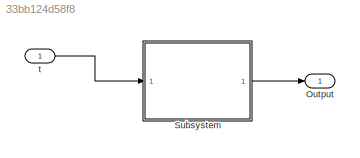
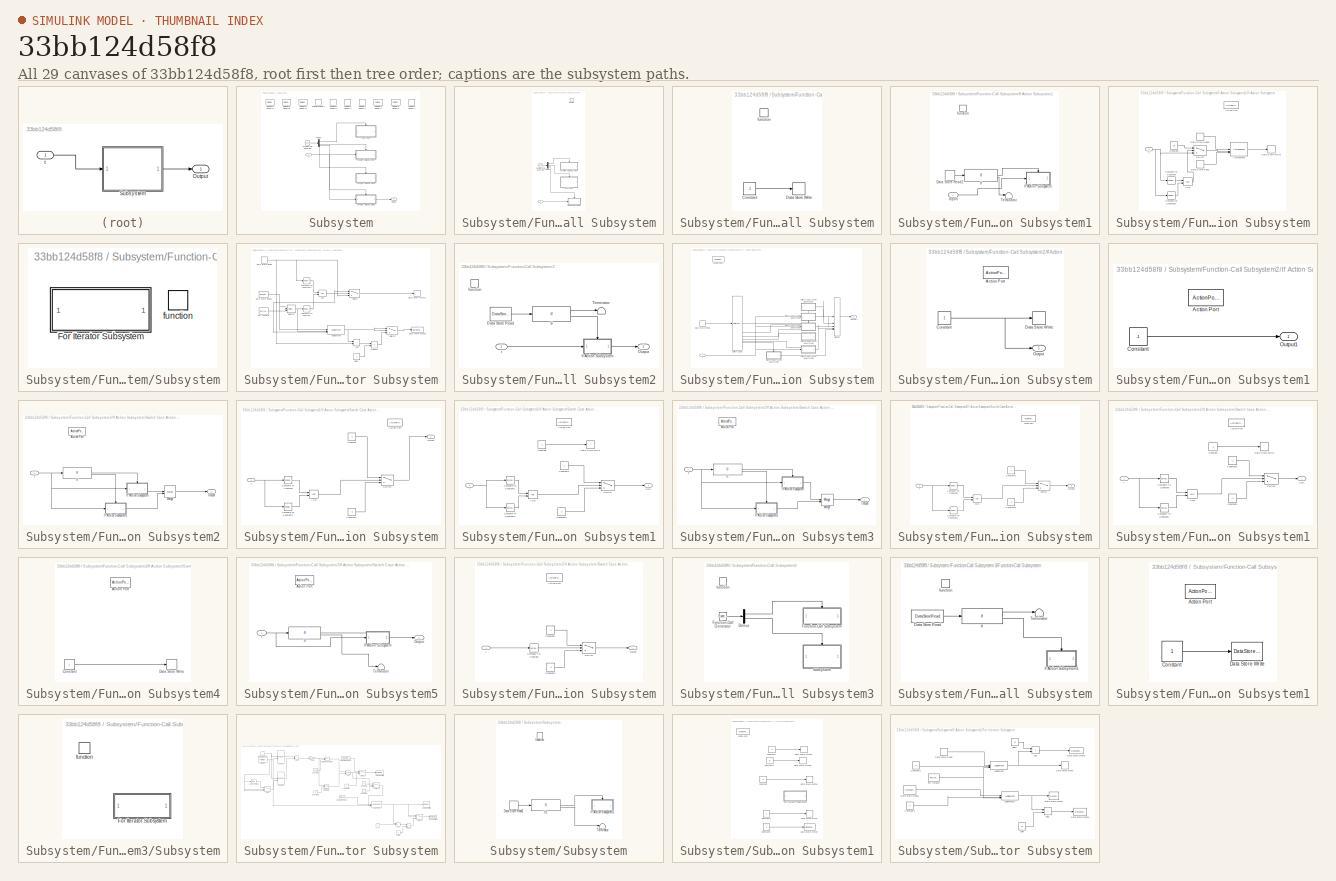
[diagram: thumbnail index - all 29 canvases of the model, root first then tree order]
MODEL slx_33bb124d58f8
KIND model
CONFIG AbsTol = auto
CONFIG EnableMultiTasking = off
CONFIG FixedStep = 1
CONFIG MaxStep = auto
CONFIG MinStep = auto
CONFIG RelTol = 1e-3
CONFIG SampleTimeConstraint = Unconstrained
CONFIG SolverName = FixedStepAuto
CONFIG StartTime = 0.0
CONFIG StopTime = 10.0
BLOCK [Outport] Output
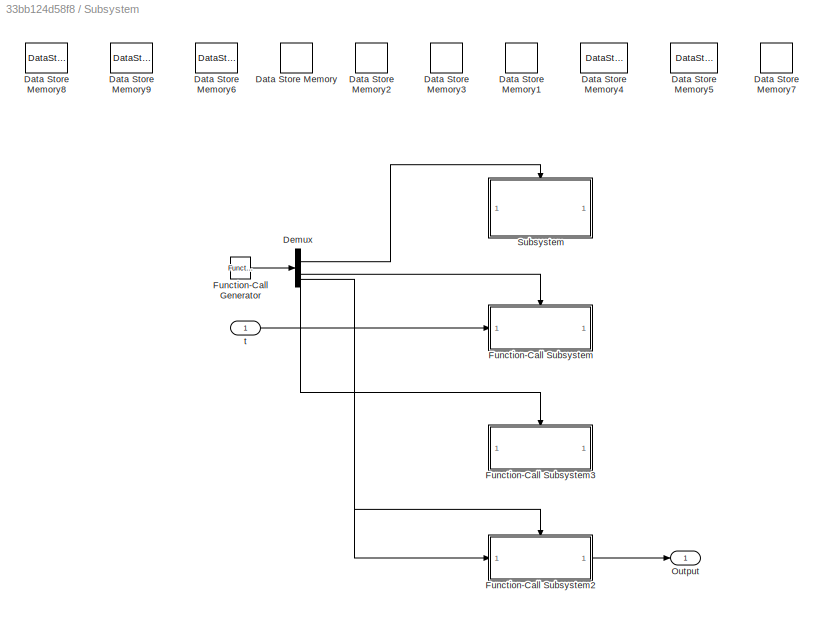
BLOCK [SubSystem] Subsystem
BLOCK [DataStoreMemory] Subsystem/Data Store Memory
  DataStoreName = Data
  Dimensions = length
  OutDataTypeStr = single
  ShowAdditionalParam = off
  WriteAfterWriteMsg = warning
BLOCK [DataStoreMemory] Subsystem/Data Store Memory1
  DataStoreName = ID
  OutDataTypeStr = int32
  ShowAdditionalParam = off
  WriteAfterWriteMsg = warning
BLOCK [DataStoreMemory] Subsystem/Data Store Memory2
  DataStoreName = Index
  OutDataTypeStr = int32
  ShowAdditionalParam = off
  WriteAfterWriteMsg = warning
BLOCK [DataStoreMemory] Subsystem/Data Store Memory3
  DataStoreName = Init
  OutDataTypeStr = int32
  ShowAdditionalParam = off
  WriteAfterWriteMsg = warning
BLOCK [DataStoreMemory] Subsystem/Data Store Memory4
  DataStoreName = Terminate
  OutDataTypeStr = int32
  ShowAdditionalParam = off
  WriteAfterWriteMsg = warning
BLOCK [DataStoreMemory] Subsystem/Data Store Memory5
  DataStoreName = Error
  OutDataTypeStr = int32
  ShowAdditionalParam = off
  WriteAfterWriteMsg = warning
BLOCK [DataStoreMemory] Subsystem/Data Store Memory6
  DataStoreName = Satisfied
  Dimensions = length
  OutDataTypeStr = int32
  ShowAdditionalParam = off
  WriteAfterWriteMsg = warning
BLOCK [DataStoreMemory] Subsystem/Data Store Memory7
  DataStoreName = State
  ShowAdditionalParam = off
  WriteAfterWriteMsg = warning
BLOCK [DataStoreMemory] Subsystem/Data Store Memory8
  DataStoreName = Data_o
  Dimensions = length
  OutDataTypeStr = single
  ShowAdditionalParam = off
  WriteAfterWriteMsg = warning
BLOCK [DataStoreMemory] Subsystem/Data Store Memory9
  DataStoreName = Sat_o
  Dimensions = length
  OutDataTypeStr = int32
  ShowAdditionalParam = off
  WriteAfterWriteMsg = warning
BLOCK [Demux] Subsystem/Demux
BLOCK [Reference] Subsystem/Function-Call Generator  REF=simulink/Ports &
Subsystems/Function-Call
Generator
  SourceBlock = simulink/Ports &\nSubsystems/Function-Call\nGenerator
  SourceType = Function-Call Generator
BLOCK [SubSystem] Subsystem/Function-Call Subsystem
  TreatAsAtomicUnit = on
BLOCK [Demux] Subsystem/Function-Call Subsystem/Demux
  Outputs = 3
BLOCK [Reference] Subsystem/Function-Call Subsystem/Function-Call Generator  REF=simulink/Ports &
Subsystems/Function-Call
Generator
  SourceBlock = simulink/Ports &\nSubsystems/Function-Call\nGenerator
  SourceType = Function-Call Generator
BLOCK [SubSystem] Subsystem/Function-Call Subsystem/Function-Call Subsystem
  TreatAsAtomicUnit = on
BLOCK [Constant] Subsystem/Function-Call Subsystem/Function-Call Subsystem/Constant
  OutDataTypeStr = int32
  Value = -1
BLOCK [DataStoreWrite] Subsystem/Function-Call Subsystem/Function-Call Subsystem/Data Store Write
  DataStoreName = Index
  IndexOptions = Index vector (dialog)
  Indices = 1
  OutputSizes = 1
BLOCK [TriggerPort] Subsystem/Function-Call Subsystem/Function-Call Subsystem/function
  StatesWhenEnabling = held
  TriggerType = function-call
  VariantControl = (inherit)
BLOCK [SubSystem] Subsystem/Function-Call Subsystem/If Action Subsystem1
  TreatAsAtomicUnit = on
BLOCK [DataStoreRead] Subsystem/Function-Call Subsystem/If Action Subsystem1/Data Store Read2
  DataStoreName = Index
  IndexOptions = Index vector (dialog)
  Indices = 1
  OutputSizes = 1
BLOCK [If] Subsystem/Function-Call Subsystem/If Action Subsystem1/If
  IfExpression = u1 ~= -1
BLOCK [SubSystem] Subsystem/Function-Call Subsystem/If Action Subsystem1/If Action Subsystem
  TreatAsAtomicUnit = on
BLOCK [Logic] Subsystem/Function-Call Subsystem/If Action Subsystem1/If Action Subsystem/AND
  AllPortsSameDT = off
  IconShape = distinctive
  OutDataTypeStr = boolean
BLOCK [ActionPort] Subsystem/Function-Call Subsystem/If Action Subsystem1/If Action Subsystem/Action Port
  ActionPortLabel = if(u1 ~= -1)
BLOCK [Assignment] Subsystem/Function-Call Subsystem/If Action Subsystem1/If Action Subsystem/Assignment
  DiagnosticForDimensions = Warning
  IndexMode = Zero-based
  IndexOptions = Index vector (port)
  Indices = 1
  OutputSizes = 1
BLOCK [Reference] Subsystem/Function-Call Subsystem/If Action Subsystem1/If Action Subsystem/Compare To Constant  REF=simulink/Logic and Bit
Operations/Compare
To Constant
  SourceBlock = simulink/Logic and Bit\nOperations/Compare\nTo Constant
  SourceType = Compare To Constant
BLOCK [Reference] Subsystem/Function-Call Subsystem/If Action Subsystem1/If Action Subsystem/Compare To Constant1  REF=simulink/Logic and Bit
Operations/Compare
To Constant
  SourceBlock = simulink/Logic and Bit\nOperations/Compare\nTo Constant
  SourceType = Compare To Constant
BLOCK [Constant] Subsystem/Function-Call Subsystem/If Action Subsystem1/If Action Subsystem/Constant
  OutDataTypeStr = single
  Value = 1.5
BLOCK [DataStoreRead] Subsystem/Function-Call Subsystem/If Action Subsystem1/If Action Subsystem/Data Store Read
  DataStoreName = Index
  IndexOptions = Index vector (dialog)
  Indices = 1
  OutputSizes = 1
BLOCK [DataStoreRead] Subsystem/Function-Call Subsystem/If Action Subsystem1/If Action Subsystem/Data Store Read1
  DataStoreName = Data
  IndexOptions = Index vector (dialog)
  Indices = 1
  OutputSizes = 1
BLOCK [DataStoreWrite] Subsystem/Function-Call Subsystem/If Action Subsystem1/If Action Subsystem/Data Store Write
  DataStoreName = Data
  IndexOptions = Index vector (dialog)
  Indices = 1
  OutputSizes = 1
BLOCK [Switch] Subsystem/Function-Call Subsystem/If Action Subsystem1/If Action Subsystem/Switch
  Criteria = u2 ~= 0
  InputSameDT = off
  SaturateOnIntegerOverflow = off
BLOCK [Inport] Subsystem/Function-Call Subsystem/If Action Subsystem1/If Action Subsystem/t
BLOCK [Inport] Subsystem/Function-Call Subsystem/If Action Subsystem1/Inport
BLOCK [Terminator] Subsystem/Function-Call Subsystem/If Action Subsystem1/Terminator
BLOCK [TriggerPort] Subsystem/Function-Call Subsystem/If Action Subsystem1/function
  StatesWhenEnabling = held
  TriggerType = function-call
  VariantControl = (inherit)
BLOCK [SubSystem] Subsystem/Function-Call Subsystem/Subsystem
BLOCK [SubSystem] Subsystem/Function-Call Subsystem/Subsystem/For Iterator Subsystem
  TreatAsAtomicUnit = on
BLOCK [Logic] Subsystem/Function-Call Subsystem/Subsystem/For Iterator Subsystem/AND
  AllPortsSameDT = off
  IconShape = distinctive
  OutDataTypeStr = boolean
BLOCK [Sum] Subsystem/Function-Call Subsystem/Subsystem/For Iterator Subsystem/Add
  IconShape = rectangular
  OutDataTypeStr = int32
BLOCK [Assignment] Subsystem/Function-Call Subsystem/Subsystem/For Iterator Subsystem/Assignment
  DiagnosticForDimensions = Warning
  IndexMode = Zero-based
  IndexOptions = Index vector (port)
  Indices = 1
  OutputSizes = 1
BLOCK [Reference] Subsystem/Function-Call Subsystem/Subsystem/For Iterator Subsystem/Compare To Constant  REF=simulink/Logic and Bit
Operations/Compare
To Constant
  SourceBlock = simulink/Logic and Bit\nOperations/Compare\nTo Constant
  SourceType = Compare To Constant
BLOCK [Reference] Subsystem/Function-Call Subsystem/Subsystem/For Iterator Subsystem/Compare To Constant1  REF=simulink/Logic and Bit
Operations/Compare
To Constant
  SourceBlock = simulink/Logic and Bit\nOperations/Compare\nTo Constant
  SourceType = Compare To Constant
BLOCK [DataStoreRead] Subsystem/Function-Call Subsystem/Subsystem/For Iterator Subsystem/Data Store Read
  DataStoreName = Index
  IndexOptions = Index vector (dialog)
  Indices = 1
  OutputSizes = 1
BLOCK [DataStoreRead] Subsystem/Function-Call Subsystem/Subsystem/For Iterator Subsystem/Data Store Read1
  DataStoreName = Satisfied
  IndexOptions = Index vector (dialog)
  Indices = 1
  OutputSizes = 1
BLOCK [DataStoreWrite] Subsystem/Function-Call Subsystem/Subsystem/For Iterator Subsystem/Data Store Write1
  DataStoreName = Index
  IndexOptions = Index vector (dialog)
  Indices = 1
  OutputSizes = 1
BLOCK [DataStoreWrite] Subsystem/Function-Call Subsystem/Subsystem/For Iterator Subsystem/Data Store Write2
  DataStoreName = Sat_o
  IndexOptions = Index vector (dialog)
  Indices = 1
  OutputSizes = 1
BLOCK [ForIterator] Subsystem/Function-Call Subsystem/Subsystem/For Iterator Subsystem/For Iterator
  IndexMode = Zero-based
  IterationLimit = length
BLOCK [Product] Subsystem/Function-Call Subsystem/Subsystem/For Iterator Subsystem/Product
  OutDataTypeStr = int32
BLOCK [Selector] Subsystem/Function-Call Subsystem/Subsystem/For Iterator Subsystem/Selector
  IndexMode = Zero-based
  IndexOptions = Index vector (port)
  Indices = [1 3]
  InputPortWidth = length
  OutputSizes = 1
BLOCK [Switch] Subsystem/Function-Call Subsystem/Subsystem/For Iterator Subsystem/Switch
  Criteria = u2 ~= 0
  InputSameDT = off
  SaturateOnIntegerOverflow = off
BLOCK [Switch] Subsystem/Function-Call Subsystem/Subsystem/For Iterator Subsystem/Switch1
  Criteria = u2 > Threshold
  InputSameDT = off
  SaturateOnIntegerOverflow = off
  Threshold = 144
BLOCK [Constant] Subsystem/Function-Call Subsystem/Subsystem/For Iterator Subsystem/delta
  Value = 2
BLOCK [TriggerPort] Subsystem/Function-Call Subsystem/Subsystem/function
  StatesWhenEnabling = held
  TriggerType = function-call
  VariantControl = (inherit)
BLOCK [TriggerPort] Subsystem/Function-Call Subsystem/function
  StatesWhenEnabling = held
  TriggerType = function-call
  VariantControl = (inherit)
BLOCK [Inport] Subsystem/Function-Call Subsystem/t
BLOCK [SubSystem] Subsystem/Function-Call Subsystem2
  TreatAsAtomicUnit = on
BLOCK [DataStoreRead] Subsystem/Function-Call Subsystem2/Data Store Read
  DataStoreName = Terminate
  IndexOptions = Index vector (dialog)
  Indices = 1
  OutputSizes = 1
BLOCK [If] Subsystem/Function-Call Subsystem2/If
  IfExpression = u1 == 0
BLOCK [SubSystem] Subsystem/Function-Call Subsystem2/If Action Subsystem
  TreatAsAtomicUnit = on
BLOCK [ActionPort] Subsystem/Function-Call Subsystem2/If Action Subsystem/Action Port
  ActionPortLabel = else
BLOCK [DataStoreRead] Subsystem/Function-Call Subsystem2/If Action Subsystem/Data Store Read
  DataStoreName = State
  IndexOptions = Index vector (dialog)
  Indices = 1
  OutputSizes = 1
BLOCK [Merge] Subsystem/Function-Call Subsystem2/If Action Subsystem/Merge
  Inputs = 5
BLOCK [Outport] Subsystem/Function-Call Subsystem2/If Action Subsystem/Output1
  OutDataTypeStr = int32
BLOCK [SwitchCase] Subsystem/Function-Call Subsystem2/If Action Subsystem/Switch Case
  CaseConditions = {0,1,2,3,4}
BLOCK [SubSystem] Subsystem/Function-Call Subsystem2/If Action Subsystem/Switch Case Action Subsystem
  TreatAsAtomicUnit = on
BLOCK [ActionPort] Subsystem/Function-Call Subsystem2/If Action Subsystem/Switch Case Action Subsystem/Action Port
  ActionPortLabel = case [ 0 ]:
BLOCK [Constant] Subsystem/Function-Call Subsystem2/If Action Subsystem/Switch Case Action Subsystem/Constant
  OutDataTypeStr = int32
BLOCK [DataStoreWrite] Subsystem/Function-Call Subsystem2/If Action Subsystem/Switch Case Action Subsystem/Data Store Write
  DataStoreName = State
  IndexOptions = Index vector (dialog)
  Indices = 1
  OutputSizes = 1
BLOCK [Outport] Subsystem/Function-Call Subsystem2/If Action Subsystem/Switch Case Action Subsystem/Output
  OutDataTypeStr = int32
BLOCK [SubSystem] Subsystem/Function-Call Subsystem2/If Action Subsystem/Switch Case Action Subsystem1
  TreatAsAtomicUnit = on
BLOCK [ActionPort] Subsystem/Function-Call Subsystem2/If Action Subsystem/Switch Case Action Subsystem1/Action Port
  ActionPortLabel = default:
BLOCK [Constant] Subsystem/Function-Call Subsystem2/If Action Subsystem/Switch Case Action Subsystem1/Constant
  OutDataTypeStr = int32
  Value = -1
BLOCK [Outport] Subsystem/Function-Call Subsystem2/If Action Subsystem/Switch Case Action Subsystem1/Output1
  OutDataTypeStr = int32
BLOCK [SubSystem] Subsystem/Function-Call Subsystem2/If Action Subsystem/Switch Case Action Subsystem2
  TreatAsAtomicUnit = on
BLOCK [ActionPort] Subsystem/Function-Call Subsystem2/If Action Subsystem/Switch Case Action Subsystem2/Action Port
  ActionPortLabel = case [ 1 ]:
BLOCK [If] Subsystem/Function-Call Subsystem2/If Action Subsystem/Switch Case Action Subsystem2/If
  IfExpression = u1 >= 2
BLOCK [SubSystem] Subsystem/Function-Call Subsystem2/If Action Subsystem/Switch Case Action Subsystem2/If Action Subsystem
  TreatAsAtomicUnit = on
BLOCK [Logic] Subsystem/Function-Call Subsystem2/If Action Subsystem/Switch Case Action Subsystem2/If Action Subsystem/AND
  AllPortsSameDT = off
  IconShape = distinctive
  OutDataTypeStr = boolean
BLOCK [ActionPort] Subsystem/Function-Call Subsystem2/If Action Subsystem/Switch Case Action Subsystem2/If Action Subsystem/Action Port
  ActionPortLabel = if(u1 >= 2)
BLOCK [Reference] Subsystem/Function-Call Subsystem2/If Action Subsystem/Switch Case Action Subsystem2/If Action Subsystem/Compare To Constant  REF=simulink/Logic and Bit
Operations/Compare
To Constant
  SourceBlock = simulink/Logic and Bit\nOperations/Compare\nTo Constant
  SourceType = Compare To Constant
BLOCK [Reference] Subsystem/Function-Call Subsystem2/If Action Subsystem/Switch Case Action Subsystem2/If Action Subsystem/Compare To Constant1  REF=simulink/Logic and Bit
Operations/Compare
To Constant
  SourceBlock = simulink/Logic and Bit\nOperations/Compare\nTo Constant
  SourceType = Compare To Constant
BLOCK [Constant] Subsystem/Function-Call Subsystem2/If Action Subsystem/Switch Case Action Subsystem2/If Action Subsystem/Constant
  OutDataTypeStr = int32
  Value = -1
BLOCK [Constant] Subsystem/Function-Call Subsystem2/If Action Subsystem/Switch Case Action Subsystem2/If Action Subsystem/Constant1
  OutDataTypeStr = int32
  Value = -3
BLOCK [Outport] Subsystem/Function-Call Subsystem2/If Action Subsystem/Switch Case Action Subsystem2/If Action Subsystem/Output
BLOCK [Switch] Subsystem/Function-Call Subsystem2/If Action Subsystem/Switch Case Action Subsystem2/If Action Subsystem/Switch
  Criteria = u2 > Threshold
  InputSameDT = off
  SaturateOnIntegerOverflow = off
BLOCK [Inport] Subsystem/Function-Call Subsystem2/If Action Subsystem/Switch Case Action Subsystem2/If Action Subsystem/t
BLOCK [SubSystem] Subsystem/Function-Call Subsystem2/If Action Subsystem/Switch Case Action Subsystem2/If Action Subsystem1
  TreatAsAtomicUnit = on
BLOCK [Logic] Subsystem/Function-Call Subsystem2/If Action Subsystem/Switch Case Action Subsystem2/If Action Subsystem1/AND
  AllPortsSameDT = off
  IconShape = distinctive
  OutDataTypeStr = boolean
BLOCK [ActionPort] Subsystem/Function-Call Subsystem2/If Action Subsystem/Switch Case Action Subsystem2/If Action Subsystem1/Action Port
  ActionPortLabel = else
BLOCK [Reference] Subsystem/Function-Call Subsystem2/If Action Subsystem/Switch Case Action Subsystem2/If Action Subsystem1/Compare To Constant1  REF=simulink/Logic and Bit
Operations/Compare
To Constant
  SourceBlock = simulink/Logic and Bit\nOperations/Compare\nTo Constant
  SourceType = Compare To Constant
BLOCK [Reference] Subsystem/Function-Call Subsystem2/If Action Subsystem/Switch Case Action Subsystem2/If Action Subsystem1/Compare To Constant2  REF=simulink/Logic and Bit
Operations/Compare
To Constant
  SourceBlock = simulink/Logic and Bit\nOperations/Compare\nTo Constant
  SourceType = Compare To Constant
BLOCK [Constant] Subsystem/Function-Call Subsystem2/If Action Subsystem/Switch Case Action Subsystem2/If Action Subsystem1/Constant
  OutDataTypeStr = int32
  Value = 2
BLOCK [Constant] Subsystem/Function-Call Subsystem2/If Action Subsystem/Switch Case Action Subsystem2/If Action Subsystem1/Constant1
  OutDataTypeStr = int32
BLOCK [Constant] Subsystem/Function-Call Subsystem2/If Action Subsystem/Switch Case Action Subsystem2/If Action Subsystem1/Constant2
  OutDataTypeStr = int32
  Value = 3
BLOCK [DataStoreWrite] Subsystem/Function-Call Subsystem2/If Action Subsystem/Switch Case Action Subsystem2/If Action Subsystem1/Data Store Write
  DataStoreName = State
  IndexOptions = Index vector (dialog)
  Indices = 1
  OutputSizes = 1
BLOCK [Outport] Subsystem/Function-Call Subsystem2/If Action Subsystem/Switch Case Action Subsystem2/If Action Subsystem1/Out1
BLOCK [Switch] Subsystem/Function-Call Subsystem2/If Action Subsystem/Switch Case Action Subsystem2/If Action Subsystem1/Switch
  Criteria = u2 > Threshold
  InputSameDT = off
  SaturateOnIntegerOverflow = off
BLOCK [Inport] Subsystem/Function-Call Subsystem2/If Action Subsystem/Switch Case Action Subsystem2/If Action Subsystem1/t
BLOCK [Merge] Subsystem/Function-Call Subsystem2/If Action Subsystem/Switch Case Action Subsystem2/Merge
BLOCK [Outport] Subsystem/Function-Call Subsystem2/If Action Subsystem/Switch Case Action Subsystem2/Output
  OutDataTypeStr = int32
BLOCK [Inport] Subsystem/Function-Call Subsystem2/If Action Subsystem/Switch Case Action Subsystem2/t
BLOCK [SubSystem] Subsystem/Function-Call Subsystem2/If Action Subsystem/Switch Case Action Subsystem3
  TreatAsAtomicUnit = on
BLOCK [ActionPort] Subsystem/Function-Call Subsystem2/If Action Subsystem/Switch Case Action Subsystem3/Action Port
  ActionPortLabel = case [ 2 ]:
BLOCK [If] Subsystem/Function-Call Subsystem2/If Action Subsystem/Switch Case Action Subsystem3/If
  IfExpression = u1 > 9
BLOCK [SubSystem] Subsystem/Function-Call Subsystem2/If Action Subsystem/Switch Case Action Subsystem3/If Action Subsystem
  TreatAsAtomicUnit = on
BLOCK [Logic] Subsystem/Function-Call Subsystem2/If Action Subsystem/Switch Case Action Subsystem3/If Action Subsystem/AND
  AllPortsSameDT = off
  IconShape = distinctive
  OutDataTypeStr = boolean
BLOCK [ActionPort] Subsystem/Function-Call Subsystem2/If Action Subsystem/Switch Case Action Subsystem3/If Action Subsystem/Action Port
  ActionPortLabel = if(u1 > 9)
BLOCK [Reference] Subsystem/Function-Call Subsystem2/If Action Subsystem/Switch Case Action Subsystem3/If Action Subsystem/Compare To Constant  REF=simulink/Logic and Bit
Operations/Compare
To Constant
  SourceBlock = simulink/Logic and Bit\nOperations/Compare\nTo Constant
  SourceType = Compare To Constant
BLOCK [Reference] Subsystem/Function-Call Subsystem2/If Action Subsystem/Switch Case Action Subsystem3/If Action Subsystem/Compare To Constant1  REF=simulink/Logic and Bit
Operations/Compare
To Constant
  SourceBlock = simulink/Logic and Bit\nOperations/Compare\nTo Constant
  SourceType = Compare To Constant
BLOCK [Constant] Subsystem/Function-Call Subsystem2/If Action Subsystem/Switch Case Action Subsystem3/If Action Subsystem/Constant1
  OutDataTypeStr = int32
  Value = -1
BLOCK [Constant] Subsystem/Function-Call Subsystem2/If Action Subsystem/Switch Case Action Subsystem3/If Action Subsystem/Constant2
  OutDataTypeStr = int32
  Value = -3
BLOCK [Outport] Subsystem/Function-Call Subsystem2/If Action Subsystem/Switch Case Action Subsystem3/If Action Subsystem/Output
BLOCK [Switch] Subsystem/Function-Call Subsystem2/If Action Subsystem/Switch Case Action Subsystem3/If Action Subsystem/Switch
  Criteria = u2 > Threshold
  InputSameDT = off
  SaturateOnIntegerOverflow = off
BLOCK [Inport] Subsystem/Function-Call Subsystem2/If Action Subsystem/Switch Case Action Subsystem3/If Action Subsystem/t
BLOCK [SubSystem] Subsystem/Function-Call Subsystem2/If Action Subsystem/Switch Case Action Subsystem3/If Action Subsystem1
  TreatAsAtomicUnit = on
BLOCK [Logic] Subsystem/Function-Call Subsystem2/If Action Subsystem/Switch Case Action Subsystem3/If Action Subsystem1/AND
  AllPortsSameDT = off
  IconShape = distinctive
  OutDataTypeStr = boolean
BLOCK [ActionPort] Subsystem/Function-Call Subsystem2/If Action Subsystem/Switch Case Action Subsystem3/If Action Subsystem1/Action Port
  ActionPortLabel = else
BLOCK [Reference] Subsystem/Function-Call Subsystem2/If Action Subsystem/Switch Case Action Subsystem3/If Action Subsystem1/Compare To Constant  REF=simulink/Logic and Bit
Operations/Compare
To Constant
  SourceBlock = simulink/Logic and Bit\nOperations/Compare\nTo Constant
  SourceType = Compare To Constant
BLOCK [Reference] Subsystem/Function-Call Subsystem2/If Action Subsystem/Switch Case Action Subsystem3/If Action Subsystem1/Compare To Constant1  REF=simulink/Logic and Bit
Operations/Compare
To Constant
  SourceBlock = simulink/Logic and Bit\nOperations/Compare\nTo Constant
  SourceType = Compare To Constant
BLOCK [Constant] Subsystem/Function-Call Subsystem2/If Action Subsystem/Switch Case Action Subsystem3/If Action Subsystem1/Constant
  OutDataTypeStr = int32
  Value = 3
BLOCK [Constant] Subsystem/Function-Call Subsystem2/If Action Subsystem/Switch Case Action Subsystem3/If Action Subsystem1/Constant1
  OutDataTypeStr = int32
  Value = -1
BLOCK [Constant] Subsystem/Function-Call Subsystem2/If Action Subsystem/Switch Case Action Subsystem3/If Action Subsystem1/Constant2
  OutDataTypeStr = int32
  Value = -3
BLOCK [DataStoreWrite] Subsystem/Function-Call Subsystem2/If Action Subsystem/Switch Case Action Subsystem3/If Action Subsystem1/Data Store Write
  DataStoreName = State
  IndexOptions = Index vector (dialog)
  Indices = 1
  OutputSizes = 1
BLOCK [Outport] Subsystem/Function-Call Subsystem2/If Action Subsystem/Switch Case Action Subsystem3/If Action Subsystem1/Out1
BLOCK [Switch] Subsystem/Function-Call Subsystem2/If Action Subsystem/Switch Case Action Subsystem3/If Action Subsystem1/Switch
  Criteria = u2 > Threshold
  InputSameDT = off
  SaturateOnIntegerOverflow = off
BLOCK [Inport] Subsystem/Function-Call Subsystem2/If Action Subsystem/Switch Case Action Subsystem3/If Action Subsystem1/t
BLOCK [Merge] Subsystem/Function-Call Subsystem2/If Action Subsystem/Switch Case Action Subsystem3/Merge
BLOCK [Outport] Subsystem/Function-Call Subsystem2/If Action Subsystem/Switch Case Action Subsystem3/Output
  OutDataTypeStr = int32
BLOCK [Inport] Subsystem/Function-Call Subsystem2/If Action Subsystem/Switch Case Action Subsystem3/t
BLOCK [SubSystem] Subsystem/Function-Call Subsystem2/If Action Subsystem/Switch Case Action Subsystem4
  TreatAsAtomicUnit = on
BLOCK [ActionPort] Subsystem/Function-Call Subsystem2/If Action Subsystem/Switch Case Action Subsystem4/Action Port
  ActionPortLabel = case [ 3 ]:
BLOCK [Constant] Subsystem/Function-Call Subsystem2/If Action Subsystem/Switch Case Action Subsystem4/Constant
  OutDataTypeStr = int32
  Value = 4
BLOCK [DataStoreWrite] Subsystem/Function-Call Subsystem2/If Action Subsystem/Switch Case Action Subsystem4/Data Store Write
  DataStoreName = State
  IndexOptions = Index vector (dialog)
  Indices = 1
  OutputSizes = 1
BLOCK [SubSystem] Subsystem/Function-Call Subsystem2/If Action Subsystem/Switch Case Action Subsystem5
  TreatAsAtomicUnit = on
BLOCK [ActionPort] Subsystem/Function-Call Subsystem2/If Action Subsystem/Switch Case Action Subsystem5/Action Port
  ActionPortLabel = case [ 4 ]:
BLOCK [If] Subsystem/Function-Call Subsystem2/If Action Subsystem/Switch Case Action Subsystem5/If
  IfExpression = u1 ~= -1
BLOCK [SubSystem] Subsystem/Function-Call Subsystem2/If Action Subsystem/Switch Case Action Subsystem5/If Action Subsystem
  TreatAsAtomicUnit = on
BLOCK [ActionPort] Subsystem/Function-Call Subsystem2/If Action Subsystem/Switch Case Action Subsystem5/If Action Subsystem/Action Port
  ActionPortLabel = if(u1 ~= -1)
BLOCK [Reference] Subsystem/Function-Call Subsystem2/If Action Subsystem/Switch Case Action Subsystem5/If Action Subsystem/Compare To Constant  REF=simulink/Logic and Bit
Operations/Compare
To Constant
  SourceBlock = simulink/Logic and Bit\nOperations/Compare\nTo Constant
  SourceType = Compare To Constant
BLOCK [Constant] Subsystem/Function-Call Subsystem2/If Action Subsystem/Switch Case Action Subsystem5/If Action Subsystem/Constant1
  OutDataTypeStr = int32
  Value = -1
BLOCK [Constant] Subsystem/Function-Call Subsystem2/If Action Subsystem/Switch Case Action Subsystem5/If Action Subsystem/Constant2
  OutDataTypeStr = int32
  Value = -3
BLOCK [Outport] Subsystem/Function-Call Subsystem2/If Action Subsystem/Switch Case Action Subsystem5/If Action Subsystem/Output
BLOCK [Switch] Subsystem/Function-Call Subsystem2/If Action Subsystem/Switch Case Action Subsystem5/If Action Subsystem/Switch
  Criteria = u2 > Threshold
  InputSameDT = off
  SaturateOnIntegerOverflow = off
BLOCK [Inport] Subsystem/Function-Call Subsystem2/If Action Subsystem/Switch Case Action Subsystem5/If Action Subsystem/t
BLOCK [Outport] Subsystem/Function-Call Subsystem2/If Action Subsystem/Switch Case Action Subsystem5/Output
  OutDataTypeStr = int32
BLOCK [Terminator] Subsystem/Function-Call Subsystem2/If Action Subsystem/Switch Case Action Subsystem5/Terminator
BLOCK [Inport] Subsystem/Function-Call Subsystem2/If Action Subsystem/Switch Case Action Subsystem5/t
BLOCK [Inport] Subsystem/Function-Call Subsystem2/If Action Subsystem/t
BLOCK [Outport] Subsystem/Function-Call Subsystem2/Output
BLOCK [Terminator] Subsystem/Function-Call Subsystem2/Terminator
BLOCK [TriggerPort] Subsystem/Function-Call Subsystem2/function
  StatesWhenEnabling = held
  TriggerType = function-call
  VariantControl = (inherit)
BLOCK [Inport] Subsystem/Function-Call Subsystem2/t
BLOCK [SubSystem] Subsystem/Function-Call Subsystem3
  TreatAsAtomicUnit = on
BLOCK [Demux] Subsystem/Function-Call Subsystem3/Demux
  Outputs = 2
BLOCK [Reference] Subsystem/Function-Call Subsystem3/Function-Call Generator  REF=simulink/Ports &
Subsystems/Function-Call
Generator
  SourceBlock = simulink/Ports &\nSubsystems/Function-Call\nGenerator
  SourceType = Function-Call Generator
BLOCK [SubSystem] Subsystem/Function-Call Subsystem3/Function-Call Subsystem
  TreatAsAtomicUnit = on
BLOCK [DataStoreRead] Subsystem/Function-Call Subsystem3/Function-Call Subsystem/Data Store Read
  DataStoreName = Terminate
  IndexOptions = Index vector (dialog)
  Indices = 1
  OutputSizes = 1
BLOCK [If] Subsystem/Function-Call Subsystem3/Function-Call Subsystem/If
BLOCK [SubSystem] Subsystem/Function-Call Subsystem3/Function-Call Subsystem/If Action Subsystem1
  TreatAsAtomicUnit = on
BLOCK [ActionPort] Subsystem/Function-Call Subsystem3/Function-Call Subsystem/If Action Subsystem1/Action Port
  ActionPortLabel = else
BLOCK [Constant] Subsystem/Function-Call Subsystem3/Function-Call Subsystem/If Action Subsystem1/Constant
  OutDataTypeStr = int32
  SampleTime = -1
  VectorParams1D = off
BLOCK [DataStoreWrite] Subsystem/Function-Call Subsystem3/Function-Call Subsystem/If Action Subsystem1/Data Store Write
  DataStoreName = Terminate
  IndexOptions = Index vector (dialog)
  Indices = 1
  OutputSizes = 1
BLOCK [Terminator] Subsystem/Function-Call Subsystem3/Function-Call Subsystem/Terminator
BLOCK [TriggerPort] Subsystem/Function-Call Subsystem3/Function-Call Subsystem/function
  StatesWhenEnabling = held
  TriggerType = function-call
  VariantControl = (inherit)
BLOCK [SubSystem] Subsystem/Function-Call Subsystem3/Subsystem
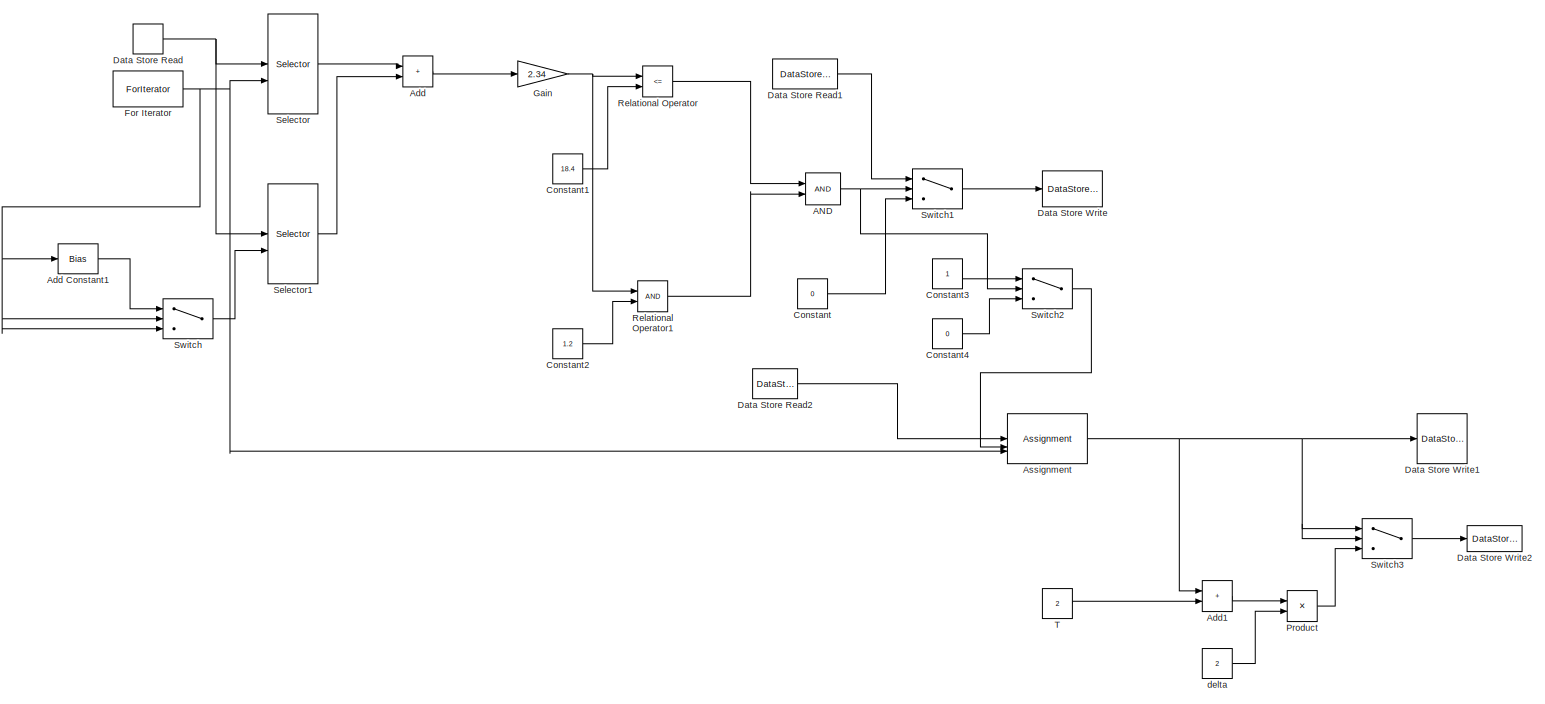
[diagram: Subsystem/Function-Call Subsystem3/Subsystem/For Iterator Subsystem - part 1/1, most of the canvas]
BLOCK [SubSystem] Subsystem/Function-Call Subsystem3/Subsystem/For Iterator Subsystem
  TreatAsAtomicUnit = on
BLOCK [Logic] Subsystem/Function-Call Subsystem3/Subsystem/For Iterator Subsystem/AND
  AllPortsSameDT = off
  IconShape = distinctive
  OutDataTypeStr = boolean
BLOCK [Sum] Subsystem/Function-Call Subsystem3/Subsystem/For Iterator Subsystem/Add
  IconShape = rectangular
BLOCK [Bias] Subsystem/Function-Call Subsystem3/Subsystem/For Iterator Subsystem/Add Constant1
  Bias = -1
  SaturateOnIntegerOverflow = off
BLOCK [Sum] Subsystem/Function-Call Subsystem3/Subsystem/For Iterator Subsystem/Add1
  IconShape = rectangular
  OutDataTypeStr = int32
BLOCK [Assignment] Subsystem/Function-Call Subsystem3/Subsystem/For Iterator Subsystem/Assignment
  DiagnosticForDimensions = Warning
  IndexMode = Zero-based
  IndexOptions = Index vector (port)
  Indices = 1
  OutputSizes = 1
BLOCK [Constant] Subsystem/Function-Call Subsystem3/Subsystem/For Iterator Subsystem/Constant
  OutDataTypeStr = int32
  Value = 0
BLOCK [Constant] Subsystem/Function-Call Subsystem3/Subsystem/For Iterator Subsystem/Constant1
  Value = 18.4
BLOCK [Constant] Subsystem/Function-Call Subsystem3/Subsystem/For Iterator Subsystem/Constant2
  Value = 1.2
BLOCK [Constant] Subsystem/Function-Call Subsystem3/Subsystem/For Iterator Subsystem/Constant3
  OutDataTypeStr = int32
BLOCK [Constant] Subsystem/Function-Call Subsystem3/Subsystem/For Iterator Subsystem/Constant4
  OutDataTypeStr = int32
  Value = 0
BLOCK [DataStoreRead] Subsystem/Function-Call Subsystem3/Subsystem/For Iterator Subsystem/Data Store Read
  DataStoreName = Data
  IndexOptions = Index vector (dialog)
  Indices = 1
  OutputSizes = 1
BLOCK [DataStoreRead] Subsystem/Function-Call Subsystem3/Subsystem/For Iterator Subsystem/Data Store Read1
  DataStoreName = Terminate
  IndexOptions = Index vector (dialog)
  Indices = 1
  OutputSizes = 1
BLOCK [DataStoreRead] Subsystem/Function-Call Subsystem3/Subsystem/For Iterator Subsystem/Data Store Read2
  DataStoreName = Satisfied
  IndexOptions = Index vector (dialog)
  Indices = 1
  OutputSizes = 1
BLOCK [DataStoreWrite] Subsystem/Function-Call Subsystem3/Subsystem/For Iterator Subsystem/Data Store Write
  DataStoreName = Terminate
  IndexOptions = Index vector (dialog)
  Indices = 1
  OutputSizes = 1
BLOCK [DataStoreWrite] Subsystem/Function-Call Subsystem3/Subsystem/For Iterator Subsystem/Data Store Write1
  DataStoreName = Satisfied
  IndexOptions = Index vector (dialog)
  Indices = 1
  OutputSizes = 1
BLOCK [DataStoreWrite] Subsystem/Function-Call Subsystem3/Subsystem/For Iterator Subsystem/Data Store Write2
  DataStoreName = Sat_o
  IndexOptions = Index vector (dialog)
  Indices = 1
  OutputSizes = 1
BLOCK [ForIterator] Subsystem/Function-Call Subsystem3/Subsystem/For Iterator Subsystem/For Iterator
  IndexMode = Zero-based
  IterationLimit = length
BLOCK [Gain] Subsystem/Function-Call Subsystem3/Subsystem/For Iterator Subsystem/Gain
  Gain = 2.34
BLOCK [Product] Subsystem/Function-Call Subsystem3/Subsystem/For Iterator Subsystem/Product
  OutDataTypeStr = int32
BLOCK [RelationalOperator] Subsystem/Function-Call Subsystem3/Subsystem/For Iterator Subsystem/Relational Operator
  InputSameDT = off
  Operator = <=
  OutDataTypeStr = boolean
  RndMeth = Simplest
BLOCK [RelationalOperator] Subsystem/Function-Call Subsystem3/Subsystem/For Iterator Subsystem/Relational Operator1
  InputSameDT = off
  OutDataTypeStr = boolean
  RndMeth = Simplest
BLOCK [Selector] Subsystem/Function-Call Subsystem3/Subsystem/For Iterator Subsystem/Selector
  IndexMode = Zero-based
  IndexOptions = Index vector (port)
  Indices = [1 3]
  InputPortWidth = length
  OutputSizes = 1
BLOCK [Selector] Subsystem/Function-Call Subsystem3/Subsystem/For Iterator Subsystem/Selector1
  IndexMode = Zero-based
  IndexOptions = Index vector (port)
  Indices = [1 3]
  InputPortWidth = length
  OutputSizes = 1
BLOCK [Switch] Subsystem/Function-Call Subsystem3/Subsystem/For Iterator Subsystem/Switch
  Criteria = u2 ~= 0
  InputSameDT = off
  SaturateOnIntegerOverflow = off
  Threshold = length-1
BLOCK [Switch] Subsystem/Function-Call Subsystem3/Subsystem/For Iterator Subsystem/Switch1
  Criteria = u2 > Threshold
  InputSameDT = off
  SaturateOnIntegerOverflow = off
BLOCK [Switch] Subsystem/Function-Call Subsystem3/Subsystem/For Iterator Subsystem/Switch2
  Criteria = u2 > Threshold
  InputSameDT = off
  SaturateOnIntegerOverflow = off
BLOCK [Switch] Subsystem/Function-Call Subsystem3/Subsystem/For Iterator Subsystem/Switch3
  Criteria = u2 > Threshold
  InputSameDT = off
  SaturateOnIntegerOverflow = off
  Threshold = 144
BLOCK [Constant] Subsystem/Function-Call Subsystem3/Subsystem/For Iterator Subsystem/T
  Value = 2
BLOCK [Constant] Subsystem/Function-Call Subsystem3/Subsystem/For Iterator Subsystem/delta
  OutDataTypeStr = int32
  Value = 2
BLOCK [TriggerPort] Subsystem/Function-Call Subsystem3/Subsystem/function
  StatesWhenEnabling = held
  TriggerType = function-call
  VariantControl = (inherit)
BLOCK [TriggerPort] Subsystem/Function-Call Subsystem3/function
  StatesWhenEnabling = held
  TriggerType = function-call
  VariantControl = (inherit)
BLOCK [Outport] Subsystem/Output
BLOCK [SubSystem] Subsystem/Subsystem
BLOCK [DataStoreRead] Subsystem/Subsystem/Data Store Read1
  DataStoreName = Init
  IndexOptions = Index vector (dialog)
  Indices = 1
  OutputSizes = 1
BLOCK [SubSystem] Subsystem/Subsystem/If Action Subsystem1
  TreatAsAtomicUnit = on
BLOCK [ActionPort] Subsystem/Subsystem/If Action Subsystem1/Action Port
  ActionPortLabel = if(u1 == 0)
BLOCK [Constant] Subsystem/Subsystem/If Action Subsystem1/Constant
  OutDataTypeStr = int32
  Value = 0
BLOCK [Constant] Subsystem/Subsystem/If Action Subsystem1/Constant1
  OutDataTypeStr = int32
BLOCK [Constant] Subsystem/Subsystem/If Action Subsystem1/Constant2
  OutDataTypeStr = int32
  Value = 0
BLOCK [Constant] Subsystem/Subsystem/If Action Subsystem1/Constant3
  OutDataTypeStr = int32
  Value = id
BLOCK [Constant] Subsystem/Subsystem/If Action Subsystem1/Constant4
  OutDataTypeStr = int32
  Value = 0
BLOCK [DataStoreWrite] Subsystem/Subsystem/If Action Subsystem1/Data Store Write
  DataStoreName = Init
  IndexOptions = Index vector (dialog)
  Indices = 1
  OutputSizes = 1
BLOCK [DataStoreWrite] Subsystem/Subsystem/If Action Subsystem1/Data Store Write1
  DataStoreName = Index
  IndexOptions = Index vector (dialog)
  Indices = 1
  OutputSizes = 1
BLOCK [DataStoreWrite] Subsystem/Subsystem/If Action Subsystem1/Data Store Write2
  DataStoreName = Terminate
  IndexOptions = Index vector (dialog)
  Indices = 1
  OutputSizes = 1
BLOCK [DataStoreWrite] Subsystem/Subsystem/If Action Subsystem1/Data Store Write3
  DataStoreName = ID
  IndexOptions = Index vector (dialog)
  Indices = 1
  OutputSizes = 1
BLOCK [DataStoreWrite] Subsystem/Subsystem/If Action Subsystem1/Data Store Write4
  DataStoreName = State
  IndexOptions = Index vector (dialog)
  Indices = 1
  OutputSizes = 1
BLOCK [SubSystem] Subsystem/Subsystem/If Action Subsystem1/For Iterator Subsystem
  TreatAsAtomicUnit = on
BLOCK [Sum] Subsystem/Subsystem/If Action Subsystem1/For Iterator Subsystem/Add
  IconShape = rectangular
  OutDataTypeStr = single
BLOCK [Sum] Subsystem/Subsystem/If Action Subsystem1/For Iterator Subsystem/Add1
  IconShape = rectangular
  OutDataTypeStr = int32
BLOCK [Assignment] Subsystem/Subsystem/If Action Subsystem1/For Iterator Subsystem/Assignment
  DiagnosticForDimensions = Warning
  IndexMode = Zero-based
  IndexOptions = Index vector (port)
  Indices = 1
  OutputSizes = 1
BLOCK [Assignment] Subsystem/Subsystem/If Action Subsystem1/For Iterator Subsystem/Assignment1
  DiagnosticForDimensions = Warning
  IndexMode = Zero-based
  IndexOptions = Index vector (port)
  Indices = 1
  OutputSizes = 1
BLOCK [Constant] Subsystem/Subsystem/If Action Subsystem1/For Iterator Subsystem/Constant1
  OutDataTypeStr = int32
  Value = 0
BLOCK [Constant] Subsystem/Subsystem/If Action Subsystem1/For Iterator Subsystem/Constant2
  OutDataTypeStr = single
  Value = 0
BLOCK [DataStoreRead] Subsystem/Subsystem/If Action Subsystem1/For Iterator Subsystem/Data Store Read
  DataStoreName = Data
  IndexOptions = Index vector (dialog)
  Indices = 1
  OutputSizes = 1
BLOCK [DataStoreRead] Subsystem/Subsystem/If Action Subsystem1/For Iterator Subsystem/Data Store Read1
  DataStoreName = Satisfied
  IndexOptions = Index vector (dialog)
  Indices = 1
  OutputSizes = 1
BLOCK [DataStoreWrite] Subsystem/Subsystem/If Action Subsystem1/For Iterator Subsystem/Data Store Write
  DataStoreName = Data
  IndexOptions = Index vector (dialog)
  Indices = 1
  OutputSizes = 1
BLOCK [DataStoreWrite] Subsystem/Subsystem/If Action Subsystem1/For Iterator Subsystem/Data Store Write1
  DataStoreName = Satisfied
  IndexOptions = Index vector (dialog)
  Indices = 1
  OutputSizes = 1
BLOCK [DataStoreWrite] Subsystem/Subsystem/If Action Subsystem1/For Iterator Subsystem/Data Store Write2
  DataStoreName = Data_o
  IndexOptions = Index vector (dialog)
  Indices = 1
  OutputSizes = 1
BLOCK [DataStoreWrite] Subsystem/Subsystem/If Action Subsystem1/For Iterator Subsystem/Data Store Write3
  DataStoreName = Sat_o
  IndexOptions = Index vector (dialog)
  Indices = 1
  OutputSizes = 1
BLOCK [ForIterator] Subsystem/Subsystem/If Action Subsystem1/For Iterator Subsystem/For Iterator
  IndexMode = Zero-based
  IterationLimit = length
BLOCK [Constant] Subsystem/Subsystem/If Action Subsystem1/For Iterator Subsystem/delta
  Value = 15
BLOCK [Constant] Subsystem/Subsystem/If Action Subsystem1/For Iterator Subsystem/shift
  OutDataTypeStr = int32
  Value = 15
BLOCK [If] Subsystem/Subsystem/If1
  IfExpression = u1 == 0
BLOCK [Terminator] Subsystem/Subsystem/Terminator
BLOCK [TriggerPort] Subsystem/Subsystem/function
  StatesWhenEnabling = held
  TriggerType = function-call
  VariantControl = (inherit)
BLOCK [Inport] Subsystem/t
BLOCK [Inport] t
LINE Subsystem/Demux:1 -> Subsystem/Subsystem:trigger
LINE Subsystem/Demux:2 -> Subsystem/Function-Call Subsystem:trigger
LINE Subsystem/Demux:3 -> Subsystem/Function-Call Subsystem3:trigger
LINE Subsystem/Demux:4 -> Subsystem/Function-Call Subsystem2:trigger
LINE Subsystem/Function-Call Generator:1 -> Subsystem/Demux:1
LINE Subsystem/Function-Call Subsystem/Demux:1 -> Subsystem/Function-Call Subsystem/Function-Call Subsystem:trigger
LINE Subsystem/Function-Call Subsystem/Demux:2 -> Subsystem/Function-Call Subsystem/Subsystem:trigger
LINE Subsystem/Function-Call Subsystem/Demux:3 -> Subsystem/Function-Call Subsystem/If Action Subsystem1:trigger
LINE Subsystem/Function-Call Subsystem/Function-Call Generator:1 -> Subsystem/Function-Call Subsystem/Demux:1
LINE Subsystem/Function-Call Subsystem/Function-Call Subsystem/Constant:1 -> Subsystem/Function-Call Subsystem/Function-Call Subsystem/Data Store Write:1
LINE Subsystem/Function-Call Subsystem/If Action Subsystem1/Data Store Read2:1 -> Subsystem/Function-Call Subsystem/If Action Subsystem1/If:1
LINE Subsystem/Function-Call Subsystem/If Action Subsystem1/If Action Subsystem/AND:1 -> Subsystem/Function-Call Subsystem/If Action Subsystem1/If Action Subsystem/Switch:2
LINE Subsystem/Function-Call Subsystem/If Action Subsystem1/If Action Subsystem/Assignment:1 -> Subsystem/Function-Call Subsystem/If Action Subsystem1/If Action Subsystem/Data Store Write:1
LINE Subsystem/Function-Call Subsystem/If Action Subsystem1/If Action Subsystem/Compare To Constant1:1 -> Subsystem/Function-Call Subsystem/If Action Subsystem1/If Action Subsystem/AND:2
LINE Subsystem/Function-Call Subsystem/If Action Subsystem1/If Action Subsystem/Compare To Constant:1 -> Subsystem/Function-Call Subsystem/If Action Subsystem1/If Action Subsystem/AND:1
LINE Subsystem/Function-Call Subsystem/If Action Subsystem1/If Action Subsystem/Constant:1 -> Subsystem/Function-Call Subsystem/If Action Subsystem1/If Action Subsystem/Switch:1
LINE Subsystem/Function-Call Subsystem/If Action Subsystem1/If Action Subsystem/Data Store Read1:1 -> Subsystem/Function-Call Subsystem/If Action Subsystem1/If Action Subsystem/Assignment:1
LINE Subsystem/Function-Call Subsystem/If Action Subsystem1/If Action Subsystem/Data Store Read:1 -> Subsystem/Function-Call Subsystem/If Action Subsystem1/If Action Subsystem/Assignment:3
LINE Subsystem/Function-Call Subsystem/If Action Subsystem1/If Action Subsystem/Switch:1 -> Subsystem/Function-Call Subsystem/If Action Subsystem1/If Action Subsystem/Assignment:2
NET Subsystem/Function-Call Subsystem/If Action Subsystem1/If Action Subsystem/t:1 -> Subsystem/Function-Call Subsystem/If Action Subsystem1/If Action Subsystem/Compare To Constant1:1, Subsystem/Function-Call Subsystem/If Action Subsystem1/If Action Subsystem/Compare To Constant:1, Subsystem/Function-Call Subsystem/If Action Subsystem1/If Action Subsystem/Switch:3
LINE Subsystem/Function-Call Subsystem/If Action Subsystem1/If:1 -> Subsystem/Function-Call Subsystem/If Action Subsystem1/If Action Subsystem:ifaction
LINE Subsystem/Function-Call Subsystem/If Action Subsystem1/If:2 -> Subsystem/Function-Call Subsystem/If Action Subsystem1/Terminator:1
LINE Subsystem/Function-Call Subsystem/If Action Subsystem1/Inport:1 -> Subsystem/Function-Call Subsystem/If Action Subsystem1/If Action Subsystem:1
LINE Subsystem/Function-Call Subsystem/Subsystem/For Iterator Subsystem/AND:1 -> Subsystem/Function-Call Subsystem/Subsystem/For Iterator Subsystem/Switch:2
LINE Subsystem/Function-Call Subsystem/Subsystem/For Iterator Subsystem/Add:1 -> Subsystem/Function-Call Subsystem/Subsystem/For Iterator Subsystem/Product:1
NET Subsystem/Function-Call Subsystem/Subsystem/For Iterator Subsystem/Assignment:1 -> Subsystem/Function-Call Subsystem/Subsystem/For Iterator Subsystem/Add:1, Subsystem/Function-Call Subsystem/Subsystem/For Iterator Subsystem/Switch1:1, Subsystem/Function-Call Subsystem/Subsystem/For Iterator Subsystem/Switch1:2
LINE Subsystem/Function-Call Subsystem/Subsystem/For Iterator Subsystem/Compare To Constant1:1 -> Subsystem/Function-Call Subsystem/Subsystem/For Iterator Subsystem/AND:1
LINE Subsystem/Function-Call Subsystem/Subsystem/For Iterator Subsystem/Compare To Constant:1 -> Subsystem/Function-Call Subsystem/Subsystem/For Iterator Subsystem/AND:2
NET Subsystem/Function-Call Subsystem/Subsystem/For Iterator Subsystem/Data Store Read1:1 -> Subsystem/Function-Call Subsystem/Subsystem/For Iterator Subsystem/Assignment:1, Subsystem/Function-Call Subsystem/Subsystem/For Iterator Subsystem/Selector:1
NET Subsystem/Function-Call Subsystem/Subsystem/For Iterator Subsystem/Data Store Read:1 -> Subsystem/Function-Call Subsystem/Subsystem/For Iterator Subsystem/Add:2, Subsystem/Function-Call Subsystem/Subsystem/For Iterator Subsystem/Compare To Constant1:1, Subsystem/Function-Call Subsystem/Subsystem/For Iterator Subsystem/Switch:3
NET Subsystem/Function-Call Subsystem/Subsystem/For Iterator Subsystem/For Iterator:1 -> Subsystem/Function-Call Subsystem/Subsystem/For Iterator Subsystem/Assignment:3, Subsystem/Function-Call Subsystem/Subsystem/For Iterator Subsystem/Selector:2, Subsystem/Function-Call Subsystem/Subsystem/For Iterator Subsystem/Switch:1
LINE Subsystem/Function-Call Subsystem/Subsystem/For Iterator Subsystem/Product:1 -> Subsystem/Function-Call Subsystem/Subsystem/For Iterator Subsystem/Switch1:3
NET Subsystem/Function-Call Subsystem/Subsystem/For Iterator Subsystem/Selector:1 -> Subsystem/Function-Call Subsystem/Subsystem/For Iterator Subsystem/Assignment:2, Subsystem/Function-Call Subsystem/Subsystem/For Iterator Subsystem/Compare To Constant:1
LINE Subsystem/Function-Call Subsystem/Subsystem/For Iterator Subsystem/Switch1:1 -> Subsystem/Function-Call Subsystem/Subsystem/For Iterator Subsystem/Data Store Write2:1
LINE Subsystem/Function-Call Subsystem/Subsystem/For Iterator Subsystem/Switch:1 -> Subsystem/Function-Call Subsystem/Subsystem/For Iterator Subsystem/Data Store Write1:1
LINE Subsystem/Function-Call Subsystem/Subsystem/For Iterator Subsystem/delta:1 -> Subsystem/Function-Call Subsystem/Subsystem/For Iterator Subsystem/Product:2
LINE Subsystem/Function-Call Subsystem/t:1 -> Subsystem/Function-Call Subsystem/If Action Subsystem1:1
LINE Subsystem/Function-Call Subsystem2/Data Store Read:1 -> Subsystem/Function-Call Subsystem2/If:1
LINE Subsystem/Function-Call Subsystem2/If Action Subsystem/Data Store Read:1 -> Subsystem/Function-Call Subsystem2/If Action Subsystem/Switch Case:1
LINE Subsystem/Function-Call Subsystem2/If Action Subsystem/Merge:1 -> Subsystem/Function-Call Subsystem2/If Action Subsystem/Output1:1
NET Subsystem/Function-Call Subsystem2/If Action Subsystem/Switch Case Action Subsystem/Constant:1 -> Subsystem/Function-Call Subsystem2/If Action Subsystem/Switch Case Action Subsystem/Data Store Write:1, Subsystem/Function-Call Subsystem2/If Action Subsystem/Switch Case Action Subsystem/Output:1
LINE Subsystem/Function-Call Subsystem2/If Action Subsystem/Switch Case Action Subsystem1/Constant:1 -> Subsystem/Function-Call Subsystem2/If Action Subsystem/Switch Case Action Subsystem1/Output1:1
LINE Subsystem/Function-Call Subsystem2/If Action Subsystem/Switch Case Action Subsystem1:1 -> Subsystem/Function-Call Subsystem2/If Action Subsystem/Merge:5
LINE Subsystem/Function-Call Subsystem2/If Action Subsystem/Switch Case Action Subsystem2/If Action Subsystem/AND:1 -> Subsystem/Function-Call Subsystem2/If Action Subsystem/Switch Case Action Subsystem2/If Action Subsystem/Switch:2
LINE Subsystem/Function-Call Subsystem2/If Action Subsystem/Switch Case Action Subsystem2/If Action Subsystem/Compare To Constant1:1 -> Subsystem/Function-Call Subsystem2/If Action Subsystem/Switch Case Action Subsystem2/If Action Subsystem/AND:2
LINE Subsystem/Function-Call Subsystem2/If Action Subsystem/Switch Case Action Subsystem2/If Action Subsystem/Compare To Constant:1 -> Subsystem/Function-Call Subsystem2/If Action Subsystem/Switch Case Action Subsystem2/If Action Subsystem/AND:1
LINE Subsystem/Function-Call Subsystem2/If Action Subsystem/Switch Case Action Subsystem2/If Action Subsystem/Constant1:1 -> Subsystem/Function-Call Subsystem2/If Action Subsystem/Switch Case Action Subsystem2/If Action Subsystem/Switch:3
LINE Subsystem/Function-Call Subsystem2/If Action Subsystem/Switch Case Action Subsystem2/If Action Subsystem/Constant:1 -> Subsystem/Function-Call Subsystem2/If Action Subsystem/Switch Case Action Subsystem2/If Action Subsystem/Switch:1
LINE Subsystem/Function-Call Subsystem2/If Action Subsystem/Switch Case Action Subsystem2/If Action Subsystem/Switch:1 -> Subsystem/Function-Call Subsystem2/If Action Subsystem/Switch Case Action Subsystem2/If Action Subsystem/Output:1
NET Subsystem/Function-Call Subsystem2/If Action Subsystem/Switch Case Action Subsystem2/If Action Subsystem/t:1 -> Subsystem/Function-Call Subsystem2/If Action Subsystem/Switch Case Action Subsystem2/If Action Subsystem/Compare To Constant1:1, Subsystem/Function-Call Subsystem2/If Action Subsystem/Switch Case Action Subsystem2/If Action Subsystem/Compare To Constant:1
LINE Subsystem/Function-Call Subsystem2/If Action Subsystem/Switch Case Action Subsystem2/If Action Subsystem1/AND:1 -> Subsystem/Function-Call Subsystem2/If Action Subsystem/Switch Case Action Subsystem2/If Action Subsystem1/Switch:2
LINE Subsystem/Function-Call Subsystem2/If Action Subsystem/Switch Case Action Subsystem2/If Action Subsystem1/Compare To Constant1:1 -> Subsystem/Function-Call Subsystem2/If Action Subsystem/Switch Case Action Subsystem2/If Action Subsystem1/AND:1
LINE Subsystem/Function-Call Subsystem2/If Action Subsystem/Switch Case Action Subsystem2/If Action Subsystem1/Compare To Constant2:1 -> Subsystem/Function-Call Subsystem2/If Action Subsystem/Switch Case Action Subsystem2/If Action Subsystem1/AND:2
LINE Subsystem/Function-Call Subsystem2/If Action Subsystem/Switch Case Action Subsystem2/If Action Subsystem1/Constant1:1 -> Subsystem/Function-Call Subsystem2/If Action Subsystem/Switch Case Action Subsystem2/If Action Subsystem1/Switch:1
LINE Subsystem/Function-Call Subsystem2/If Action Subsystem/Switch Case Action Subsystem2/If Action Subsystem1/Constant2:1 -> Subsystem/Function-Call Subsystem2/If Action Subsystem/Switch Case Action Subsystem2/If Action Subsystem1/Switch:3
LINE Subsystem/Function-Call Subsystem2/If Action Subsystem/Switch Case Action Subsystem2/If Action Subsystem1/Constant:1 -> Subsystem/Function-Call Subsystem2/If Action Subsystem/Switch Case Action Subsystem2/If Action Subsystem1/Data Store Write:1
LINE Subsystem/Function-Call Subsystem2/If Action Subsystem/Switch Case Action Subsystem2/If Action Subsystem1/Switch:1 -> Subsystem/Function-Call Subsystem2/If Action Subsystem/Switch Case Action Subsystem2/If Action Subsystem1/Out1:1
NET Subsystem/Function-Call Subsystem2/If Action Subsystem/Switch Case Action Subsystem2/If Action Subsystem1/t:1 -> Subsystem/Function-Call Subsystem2/If Action Subsystem/Switch Case Action Subsystem2/If Action Subsystem1/Compare To Constant1:1, Subsystem/Function-Call Subsystem2/If Action Subsystem/Switch Case Action Subsystem2/If Action Subsystem1/Compare To Constant2:1
LINE Subsystem/Function-Call Subsystem2/If Action Subsystem/Switch Case Action Subsystem2/If Action Subsystem1:1 -> Subsystem/Function-Call Subsystem2/If Action Subsystem/Switch Case Action Subsystem2/Merge:2
LINE Subsystem/Function-Call Subsystem2/If Action Subsystem/Switch Case Action Subsystem2/If Action Subsystem:1 -> Subsystem/Function-Call Subsystem2/If Action Subsystem/Switch Case Action Subsystem2/Merge:1
LINE Subsystem/Function-Call Subsystem2/If Action Subsystem/Switch Case Action Subsystem2/If:1 -> Subsystem/Function-Call Subsystem2/If Action Subsystem/Switch Case Action Subsystem2/If Action Subsystem:ifaction
LINE Subsystem/Function-Call Subsystem2/If Action Subsystem/Switch Case Action Subsystem2/If:2 -> Subsystem/Function-Call Subsystem2/If Action Subsystem/Switch Case Action Subsystem2/If Action Subsystem1:ifaction
LINE Subsystem/Function-Call Subsystem2/If Action Subsystem/Switch Case Action Subsystem2/Merge:1 -> Subsystem/Function-Call Subsystem2/If Action Subsystem/Switch Case Action Subsystem2/Output:1
NET Subsystem/Function-Call Subsystem2/If Action Subsystem/Switch Case Action Subsystem2/t:1 -> Subsystem/Function-Call Subsystem2/If Action Subsystem/Switch Case Action Subsystem2/If Action Subsystem1:1, Subsystem/Function-Call Subsystem2/If Action Subsystem/Switch Case Action Subsystem2/If Action Subsystem:1, Subsystem/Function-Call Subsystem2/If Action Subsystem/Switch Case Action Subsystem2/If:1
LINE Subsystem/Function-Call Subsystem2/If Action Subsystem/Switch Case Action Subsystem2:1 -> Subsystem/Function-Call Subsystem2/If Action Subsystem/Merge:2
LINE Subsystem/Function-Call Subsystem2/If Action Subsystem/Switch Case Action Subsystem3/If Action Subsystem/AND:1 -> Subsystem/Function-Call Subsystem2/If Action Subsystem/Switch Case Action Subsystem3/If Action Subsystem/Switch:2
LINE Subsystem/Function-Call Subsystem2/If Action Subsystem/Switch Case Action Subsystem3/If Action Subsystem/Compare To Constant1:1 -> Subsystem/Function-Call Subsystem2/If Action Subsystem/Switch Case Action Subsystem3/If Action Subsystem/AND:2
LINE Subsystem/Function-Call Subsystem2/If Action Subsystem/Switch Case Action Subsystem3/If Action Subsystem/Compare To Constant:1 -> Subsystem/Function-Call Subsystem2/If Action Subsystem/Switch Case Action Subsystem3/If Action Subsystem/AND:1
LINE Subsystem/Function-Call Subsystem2/If Action Subsystem/Switch Case Action Subsystem3/If Action Subsystem/Constant1:1 -> Subsystem/Function-Call Subsystem2/If Action Subsystem/Switch Case Action Subsystem3/If Action Subsystem/Switch:1
LINE Subsystem/Function-Call Subsystem2/If Action Subsystem/Switch Case Action Subsystem3/If Action Subsystem/Constant2:1 -> Subsystem/Function-Call Subsystem2/If Action Subsystem/Switch Case Action Subsystem3/If Action Subsystem/Switch:3
LINE Subsystem/Function-Call Subsystem2/If Action Subsystem/Switch Case Action Subsystem3/If Action Subsystem/Switch:1 -> Subsystem/Function-Call Subsystem2/If Action Subsystem/Switch Case Action Subsystem3/If Action Subsystem/Output:1
NET Subsystem/Function-Call Subsystem2/If Action Subsystem/Switch Case Action Subsystem3/If Action Subsystem/t:1 -> Subsystem/Function-Call Subsystem2/If Action Subsystem/Switch Case Action Subsystem3/If Action Subsystem/Compare To Constant1:1, Subsystem/Function-Call Subsystem2/If Action Subsystem/Switch Case Action Subsystem3/If Action Subsystem/Compare To Constant:1
LINE Subsystem/Function-Call Subsystem2/If Action Subsystem/Switch Case Action Subsystem3/If Action Subsystem1/AND:1 -> Subsystem/Function-Call Subsystem2/If Action Subsystem/Switch Case Action Subsystem3/If Action Subsystem1/Switch:2
LINE Subsystem/Function-Call Subsystem2/If Action Subsystem/Switch Case Action Subsystem3/If Action Subsystem1/Compare To Constant1:1 -> Subsystem/Function-Call Subsystem2/If Action Subsystem/Switch Case Action Subsystem3/If Action Subsystem1/AND:2
LINE Subsystem/Function-Call Subsystem2/If Action Subsystem/Switch Case Action Subsystem3/If Action Subsystem1/Compare To Constant:1 -> Subsystem/Function-Call Subsystem2/If Action Subsystem/Switch Case Action Subsystem3/If Action Subsystem1/AND:1
LINE Subsystem/Function-Call Subsystem2/If Action Subsystem/Switch Case Action Subsystem3/If Action Subsystem1/Constant1:1 -> Subsystem/Function-Call Subsystem2/If Action Subsystem/Switch Case Action Subsystem3/If Action Subsystem1/Switch:1
LINE Subsystem/Function-Call Subsystem2/If Action Subsystem/Switch Case Action Subsystem3/If Action Subsystem1/Constant2:1 -> Subsystem/Function-Call Subsystem2/If Action Subsystem/Switch Case Action Subsystem3/If Action Subsystem1/Switch:3
LINE Subsystem/Function-Call Subsystem2/If Action Subsystem/Switch Case Action Subsystem3/If Action Subsystem1/Constant:1 -> Subsystem/Function-Call Subsystem2/If Action Subsystem/Switch Case Action Subsystem3/If Action Subsystem1/Data Store Write:1
LINE Subsystem/Function-Call Subsystem2/If Action Subsystem/Switch Case Action Subsystem3/If Action Subsystem1/Switch:1 -> Subsystem/Function-Call Subsystem2/If Action Subsystem/Switch Case Action Subsystem3/If Action Subsystem1/Out1:1
NET Subsystem/Function-Call Subsystem2/If Action Subsystem/Switch Case Action Subsystem3/If Action Subsystem1/t:1 -> Subsystem/Function-Call Subsystem2/If Action Subsystem/Switch Case Action Subsystem3/If Action Subsystem1/Compare To Constant1:1, Subsystem/Function-Call Subsystem2/If Action Subsystem/Switch Case Action Subsystem3/If Action Subsystem1/Compare To Constant:1
LINE Subsystem/Function-Call Subsystem2/If Action Subsystem/Switch Case Action Subsystem3/If Action Subsystem1:1 -> Subsystem/Function-Call Subsystem2/If Action Subsystem/Switch Case Action Subsystem3/Merge:2
LINE Subsystem/Function-Call Subsystem2/If Action Subsystem/Switch Case Action Subsystem3/If Action Subsystem:1 -> Subsystem/Function-Call Subsystem2/If Action Subsystem/Switch Case Action Subsystem3/Merge:1
LINE Subsystem/Function-Call Subsystem2/If Action Subsystem/Switch Case Action Subsystem3/If:1 -> Subsystem/Function-Call Subsystem2/If Action Subsystem/Switch Case Action Subsystem3/If Action Subsystem:ifaction
LINE Subsystem/Function-Call Subsystem2/If Action Subsystem/Switch Case Action Subsystem3/If:2 -> Subsystem/Function-Call Subsystem2/If Action Subsystem/Switch Case Action Subsystem3/If Action Subsystem1:ifaction
LINE Subsystem/Function-Call Subsystem2/If Action Subsystem/Switch Case Action Subsystem3/Merge:1 -> Subsystem/Function-Call Subsystem2/If Action Subsystem/Switch Case Action Subsystem3/Output:1
NET Subsystem/Function-Call Subsystem2/If Action Subsystem/Switch Case Action Subsystem3/t:1 -> Subsystem/Function-Call Subsystem2/If Action Subsystem/Switch Case Action Subsystem3/If Action Subsystem1:1, Subsystem/Function-Call Subsystem2/If Action Subsystem/Switch Case Action Subsystem3/If Action Subsystem:1, Subsystem/Function-Call Subsystem2/If Action Subsystem/Switch Case Action Subsystem3/If:1
LINE Subsystem/Function-Call Subsystem2/If Action Subsystem/Switch Case Action Subsystem3:1 -> Subsystem/Function-Call Subsystem2/If Action Subsystem/Merge:3
LINE Subsystem/Function-Call Subsystem2/If Action Subsystem/Switch Case Action Subsystem4/Constant:1 -> Subsystem/Function-Call Subsystem2/If Action Subsystem/Switch Case Action Subsystem4/Data Store Write:1
LINE Subsystem/Function-Call Subsystem2/If Action Subsystem/Switch Case Action Subsystem5/If Action Subsystem/Compare To Constant:1 -> Subsystem/Function-Call Subsystem2/If Action Subsystem/Switch Case Action Subsystem5/If Action Subsystem/Switch:2
LINE Subsystem/Function-Call Subsystem2/If Action Subsystem/Switch Case Action Subsystem5/If Action Subsystem/Constant1:1 -> Subsystem/Function-Call Subsystem2/If Action Subsystem/Switch Case Action Subsystem5/If Action Subsystem/Switch:1
LINE Subsystem/Function-Call Subsystem2/If Action Subsystem/Switch Case Action Subsystem5/If Action Subsystem/Constant2:1 -> Subsystem/Function-Call Subsystem2/If Action Subsystem/Switch Case Action Subsystem5/If Action Subsystem/Switch:3
LINE Subsystem/Function-Call Subsystem2/If Action Subsystem/Switch Case Action Subsystem5/If Action Subsystem/Switch:1 -> Subsystem/Function-Call Subsystem2/If Action Subsystem/Switch Case Action Subsystem5/If Action Subsystem/Output:1
LINE Subsystem/Function-Call Subsystem2/If Action Subsystem/Switch Case Action Subsystem5/If Action Subsystem/t:1 -> Subsystem/Function-Call Subsystem2/If Action Subsystem/Switch Case Action Subsystem5/If Action Subsystem/Compare To Constant:1
LINE Subsystem/Function-Call Subsystem2/If Action Subsystem/Switch Case Action Subsystem5/If Action Subsystem:1 -> Subsystem/Function-Call Subsystem2/If Action Subsystem/Switch Case Action Subsystem5/Output:1
LINE Subsystem/Function-Call Subsystem2/If Action Subsystem/Switch Case Action Subsystem5/If:1 -> Subsystem/Function-Call Subsystem2/If Action Subsystem/Switch Case Action Subsystem5/If Action Subsystem:ifaction
LINE Subsystem/Function-Call Subsystem2/If Action Subsystem/Switch Case Action Subsystem5/If:2 -> Subsystem/Function-Call Subsystem2/If Action Subsystem/Switch Case Action Subsystem5/Terminator:1
NET Subsystem/Function-Call Subsystem2/If Action Subsystem/Switch Case Action Subsystem5/t:1 -> Subsystem/Function-Call Subsystem2/If Action Subsystem/Switch Case Action Subsystem5/If Action Subsystem:1, Subsystem/Function-Call Subsystem2/If Action Subsystem/Switch Case Action Subsystem5/If:1
LINE Subsystem/Function-Call Subsystem2/If Action Subsystem/Switch Case Action Subsystem5:1 -> Subsystem/Function-Call Subsystem2/If Action Subsystem/Merge:4
LINE Subsystem/Function-Call Subsystem2/If Action Subsystem/Switch Case Action Subsystem:1 -> Subsystem/Function-Call Subsystem2/If Action Subsystem/Merge:1
LINE Subsystem/Function-Call Subsystem2/If Action Subsystem/Switch Case:1 -> Subsystem/Function-Call Subsystem2/If Action Subsystem/Switch Case Action Subsystem:ifaction
LINE Subsystem/Function-Call Subsystem2/If Action Subsystem/Switch Case:2 -> Subsystem/Function-Call Subsystem2/If Action Subsystem/Switch Case Action Subsystem2:ifaction
LINE Subsystem/Function-Call Subsystem2/If Action Subsystem/Switch Case:3 -> Subsystem/Function-Call Subsystem2/If Action Subsystem/Switch Case Action Subsystem3:ifaction
LINE Subsystem/Function-Call Subsystem2/If Action Subsystem/Switch Case:4 -> Subsystem/Function-Call Subsystem2/If Action Subsystem/Switch Case Action Subsystem4:ifaction
LINE Subsystem/Function-Call Subsystem2/If Action Subsystem/Switch Case:5 -> Subsystem/Function-Call Subsystem2/If Action Subsystem/Switch Case Action Subsystem5:ifaction
LINE Subsystem/Function-Call Subsystem2/If Action Subsystem/Switch Case:6 -> Subsystem/Function-Call Subsystem2/If Action Subsystem/Switch Case Action Subsystem1:ifaction
NET Subsystem/Function-Call Subsystem2/If Action Subsystem/t:1 -> Subsystem/Function-Call Subsystem2/If Action Subsystem/Switch Case Action Subsystem2:1, Subsystem/Function-Call Subsystem2/If Action Subsystem/Switch Case Action Subsystem3:1, Subsystem/Function-Call Subsystem2/If Action Subsystem/Switch Case Action Subsystem5:1
LINE Subsystem/Function-Call Subsystem2/If Action Subsystem:1 -> Subsystem/Function-Call Subsystem2/Output:1
LINE Subsystem/Function-Call Subsystem2/If:1 -> Subsystem/Function-Call Subsystem2/Terminator:1
LINE Subsystem/Function-Call Subsystem2/If:2 -> Subsystem/Function-Call Subsystem2/If Action Subsystem:ifaction
LINE Subsystem/Function-Call Subsystem2/t:1 -> Subsystem/Function-Call Subsystem2/If Action Subsystem:1
LINE Subsystem/Function-Call Subsystem2:1 -> Subsystem/Output:1
LINE Subsystem/Function-Call Subsystem3/Demux:1 -> Subsystem/Function-Call Subsystem3/Function-Call Subsystem:trigger
LINE Subsystem/Function-Call Subsystem3/Demux:2 -> Subsystem/Function-Call Subsystem3/Subsystem:trigger
LINE Subsystem/Function-Call Subsystem3/Function-Call Generator:1 -> Subsystem/Function-Call Subsystem3/Demux:1
LINE Subsystem/Function-Call Subsystem3/Function-Call Subsystem/Data Store Read:1 -> Subsystem/Function-Call Subsystem3/Function-Call Subsystem/If:1
LINE Subsystem/Function-Call Subsystem3/Function-Call Subsystem/If Action Subsystem1/Constant:1 -> Subsystem/Function-Call Subsystem3/Function-Call Subsystem/If Action Subsystem1/Data Store Write:1
LINE Subsystem/Function-Call Subsystem3/Function-Call Subsystem/If:1 -> Subsystem/Function-Call Subsystem3/Function-Call Subsystem/Terminator:1
LINE Subsystem/Function-Call Subsystem3/Function-Call Subsystem/If:2 -> Subsystem/Function-Call Subsystem3/Function-Call Subsystem/If Action Subsystem1:ifaction
NET Subsystem/Function-Call Subsystem3/Subsystem/For Iterator Subsystem/AND:1 -> Subsystem/Function-Call Subsystem3/Subsystem/For Iterator Subsystem/Switch1:2, Subsystem/Function-Call Subsystem3/Subsystem/For Iterator Subsystem/Switch2:2
LINE Subsystem/Function-Call Subsystem3/Subsystem/For Iterator Subsystem/Add Constant1:1 -> Subsystem/Function-Call Subsystem3/Subsystem/For Iterator Subsystem/Switch:1
LINE Subsystem/Function-Call Subsystem3/Subsystem/For Iterator Subsystem/Add1:1 -> Subsystem/Function-Call Subsystem3/Subsystem/For Iterator Subsystem/Product:1
LINE Subsystem/Function-Call Subsystem3/Subsystem/For Iterator Subsystem/Add:1 -> Subsystem/Function-Call Subsystem3/Subsystem/For Iterator Subsystem/Gain:1
NET Subsystem/Function-Call Subsystem3/Subsystem/For Iterator Subsystem/Assignment:1 -> Subsystem/Function-Call Subsystem3/Subsystem/For Iterator Subsystem/Add1:1, Subsystem/Function-Call Subsystem3/Subsystem/For Iterator Subsystem/Data Store Write1:1, Subsystem/Function-Call Subsystem3/Subsystem/For Iterator Subsystem/Switch3:1, Subsystem/Function-Call Subsystem3/Subsystem/For Iterator Subsystem/Switch3:2
LINE Subsystem/Function-Call Subsystem3/Subsystem/For Iterator Subsystem/Constant1:1 -> Subsystem/Function-Call Subsystem3/Subsystem/For Iterator Subsystem/Relational Operator:2
LINE Subsystem/Function-Call Subsystem3/Subsystem/For Iterator Subsystem/Constant2:1 -> Subsystem/Function-Call Subsystem3/Subsystem/For Iterator Subsystem/Relational Operator1:2
LINE Subsystem/Function-Call Subsystem3/Subsystem/For Iterator Subsystem/Constant3:1 -> Subsystem/Function-Call Subsystem3/Subsystem/For Iterator Subsystem/Switch2:1
LINE Subsystem/Function-Call Subsystem3/Subsystem/For Iterator Subsystem/Constant4:1 -> Subsystem/Function-Call Subsystem3/Subsystem/For Iterator Subsystem/Switch2:3
LINE Subsystem/Function-Call Subsystem3/Subsystem/For Iterator Subsystem/Constant:1 -> Subsystem/Function-Call Subsystem3/Subsystem/For Iterator Subsystem/Switch1:3
LINE Subsystem/Function-Call Subsystem3/Subsystem/For Iterator Subsystem/Data Store Read1:1 -> Subsystem/Function-Call Subsystem3/Subsystem/For Iterator Subsystem/Switch1:1
LINE Subsystem/Function-Call Subsystem3/Subsystem/For Iterator Subsystem/Data Store Read2:1 -> Subsystem/Function-Call Subsystem3/Subsystem/For Iterator Subsystem/Assignment:1
NET Subsystem/Function-Call Subsystem3/Subsystem/For Iterator Subsystem/Data Store Read:1 -> Subsystem/Function-Call Subsystem3/Subsystem/For Iterator Subsystem/Selector1:1, Subsystem/Function-Call Subsystem3/Subsystem/For Iterator Subsystem/Selector:1
NET Subsystem/Function-Call Subsystem3/Subsystem/For Iterator Subsystem/For Iterator:1 -> Subsystem/Function-Call Subsystem3/Subsystem/For Iterator Subsystem/Add Constant1:1, Subsystem/Function-Call Subsystem3/Subsystem/For Iterator Subsystem/Assignment:3, Subsystem/Function-Call Subsystem3/Subsystem/For Iterator Subsystem/Selector:2, Subsystem/Function-Call Subsystem3/Subsystem/For Iterator Subsystem/Switch:2, Subsystem/Function-Call Subsystem3/Subsystem/For Iterator Subsystem/Switch:3
NET Subsystem/Function-Call Subsystem3/Subsystem/For Iterator Subsystem/Gain:1 -> Subsystem/Function-Call Subsystem3/Subsystem/For Iterator Subsystem/Relational Operator1:1, Subsystem/Function-Call Subsystem3/Subsystem/For Iterator Subsystem/Relational Operator:1
LINE Subsystem/Function-Call Subsystem3/Subsystem/For Iterator Subsystem/Product:1 -> Subsystem/Function-Call Subsystem3/Subsystem/For Iterator Subsystem/Switch3:3
LINE Subsystem/Function-Call Subsystem3/Subsystem/For Iterator Subsystem/Relational Operator1:1 -> Subsystem/Function-Call Subsystem3/Subsystem/For Iterator Subsystem/AND:2
LINE Subsystem/Function-Call Subsystem3/Subsystem/For Iterator Subsystem/Relational Operator:1 -> Subsystem/Function-Call Subsystem3/Subsystem/For Iterator Subsystem/AND:1
LINE Subsystem/Function-Call Subsystem3/Subsystem/For Iterator Subsystem/Selector1:1 -> Subsystem/Function-Call Subsystem3/Subsystem/For Iterator Subsystem/Add:2
LINE Subsystem/Function-Call Subsystem3/Subsystem/For Iterator Subsystem/Selector:1 -> Subsystem/Function-Call Subsystem3/Subsystem/For Iterator Subsystem/Add:1
LINE Subsystem/Function-Call Subsystem3/Subsystem/For Iterator Subsystem/Switch1:1 -> Subsystem/Function-Call Subsystem3/Subsystem/For Iterator Subsystem/Data Store Write:1
LINE Subsystem/Function-Call Subsystem3/Subsystem/For Iterator Subsystem/Switch2:1 -> Subsystem/Function-Call Subsystem3/Subsystem/For Iterator Subsystem/Assignment:2
LINE Subsystem/Function-Call Subsystem3/Subsystem/For Iterator Subsystem/Switch3:1 -> Subsystem/Function-Call Subsystem3/Subsystem/For Iterator Subsystem/Data Store Write2:1
LINE Subsystem/Function-Call Subsystem3/Subsystem/For Iterator Subsystem/Switch:1 -> Subsystem/Function-Call Subsystem3/Subsystem/For Iterator Subsystem/Selector1:2
LINE Subsystem/Function-Call Subsystem3/Subsystem/For Iterator Subsystem/T:1 -> Subsystem/Function-Call Subsystem3/Subsystem/For Iterator Subsystem/Add1:2
LINE Subsystem/Function-Call Subsystem3/Subsystem/For Iterator Subsystem/delta:1 -> Subsystem/Function-Call Subsystem3/Subsystem/For Iterator Subsystem/Product:2
LINE Subsystem/Subsystem/Data Store Read1:1 -> Subsystem/Subsystem/If1:1
LINE Subsystem/Subsystem/If Action Subsystem1/Constant1:1 -> Subsystem/Subsystem/If Action Subsystem1/Data Store Write:1
LINE Subsystem/Subsystem/If Action Subsystem1/Constant2:1 -> Subsystem/Subsystem/If Action Subsystem1/Data Store Write2:1
LINE Subsystem/Subsystem/If Action Subsystem1/Constant3:1 -> Subsystem/Subsystem/If Action Subsystem1/Data Store Write3:1
LINE Subsystem/Subsystem/If Action Subsystem1/Constant4:1 -> Subsystem/Subsystem/If Action Subsystem1/Data Store Write4:1
LINE Subsystem/Subsystem/If Action Subsystem1/Constant:1 -> Subsystem/Subsystem/If Action Subsystem1/Data Store Write1:1
LINE Subsystem/Subsystem/If Action Subsystem1/For Iterator Subsystem/Add1:1 -> Subsystem/Subsystem/If Action Subsystem1/For Iterator Subsystem/Data Store Write3:1
LINE Subsystem/Subsystem/If Action Subsystem1/For Iterator Subsystem/Add:1 -> Subsystem/Subsystem/If Action Subsystem1/For Iterator Subsystem/Data Store Write2:1
NET Subsystem/Subsystem/If Action Subsystem1/For Iterator Subsystem/Assignment1:1 -> Subsystem/Subsystem/If Action Subsystem1/For Iterator Subsystem/Add1:1, Subsystem/Subsystem/If Action Subsystem1/For Iterator Subsystem/Data Store Write1:1
NET Subsystem/Subsystem/If Action Subsystem1/For Iterator Subsystem/Assignment:1 -> Subsystem/Subsystem/If Action Subsystem1/For Iterator Subsystem/Add:2, Subsystem/Subsystem/If Action Subsystem1/For Iterator Subsystem/Data Store Write:1
LINE Subsystem/Subsystem/If Action Subsystem1/For Iterator Subsystem/Constant1:1 -> Subsystem/Subsystem/If Action Subsystem1/For Iterator Subsystem/Assignment1:2
LINE Subsystem/Subsystem/If Action Subsystem1/For Iterator Subsystem/Constant2:1 -> Subsystem/Subsystem/If Action Subsystem1/For Iterator Subsystem/Assignment:2
LINE Subsystem/Subsystem/If Action Subsystem1/For Iterator Subsystem/Data Store Read1:1 -> Subsystem/Subsystem/If Action Subsystem1/For Iterator Subsystem/Assignment1:1
LINE Subsystem/Subsystem/If Action Subsystem1/For Iterator Subsystem/Data Store Read:1 -> Subsystem/Subsystem/If Action Subsystem1/For Iterator Subsystem/Assignment:1
NET Subsystem/Subsystem/If Action Subsystem1/For Iterator Subsystem/For Iterator:1 -> Subsystem/Subsystem/If Action Subsystem1/For Iterator Subsystem/Assignment1:3, Subsystem/Subsystem/If Action Subsystem1/For Iterator Subsystem/Assignment:3
LINE Subsystem/Subsystem/If Action Subsystem1/For Iterator Subsystem/delta:1 -> Subsystem/Subsystem/If Action Subsystem1/For Iterator Subsystem/Add:1
LINE Subsystem/Subsystem/If Action Subsystem1/For Iterator Subsystem/shift:1 -> Subsystem/Subsystem/If Action Subsystem1/For Iterator Subsystem/Add1:2
LINE Subsystem/Subsystem/If1:1 -> Subsystem/Subsystem/If Action Subsystem1:ifaction
LINE Subsystem/Subsystem/If1:2 -> Subsystem/Subsystem/Terminator:1
NET Subsystem/t:1 -> Subsystem/Function-Call Subsystem2:1, Subsystem/Function-Call Subsystem:1
LINE Subsystem:1 -> Output:1
LINE t:1 -> Subsystem:1
note: NET lines group one-source signal fan-out (src -> all destinations, sorted); 1:1 wires keep LINE
